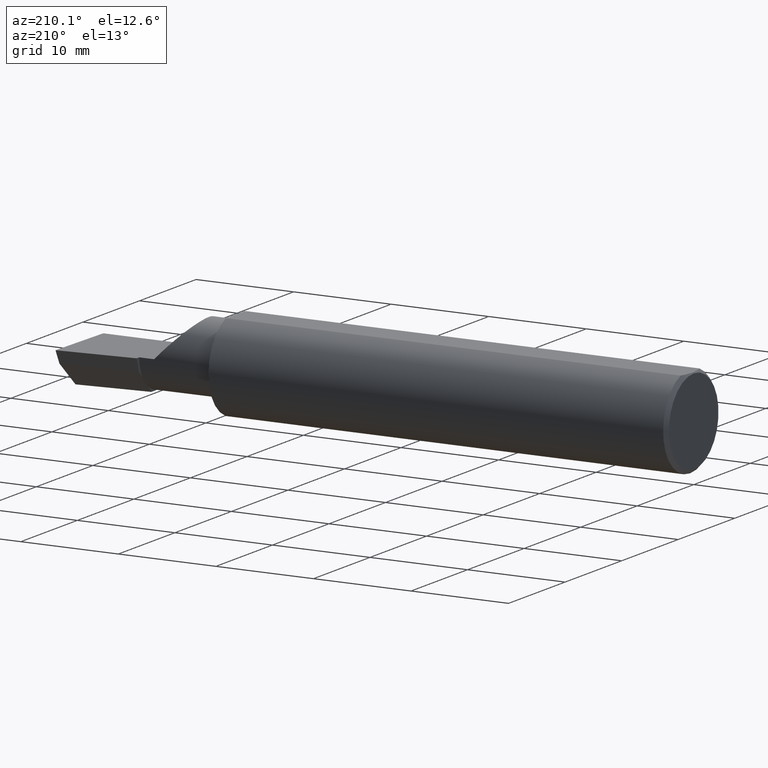
[diagram: clean part render]
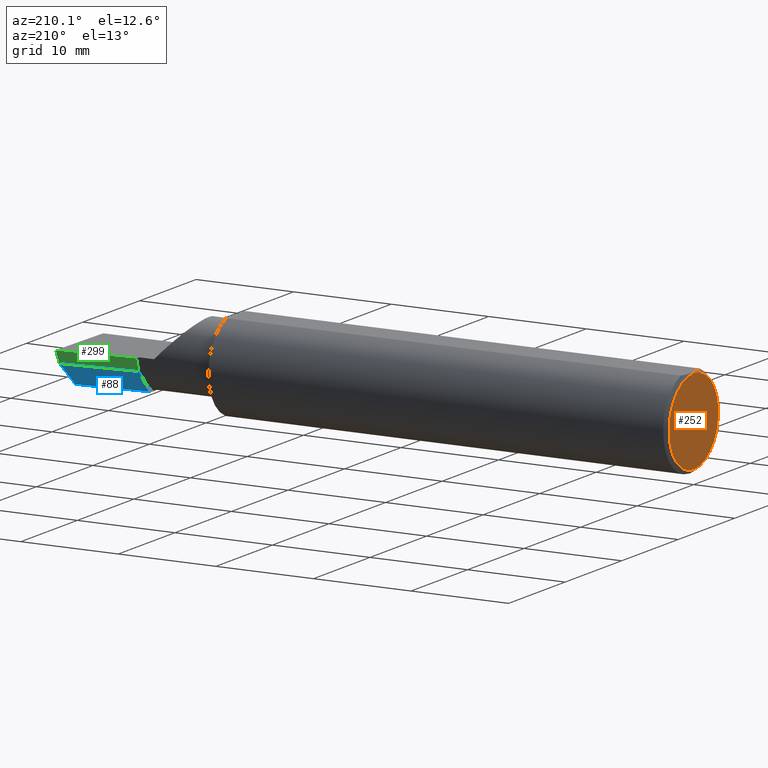
[diagram: same view with three faces highlighted in distinct colors, each labeled with its STEP entity id]
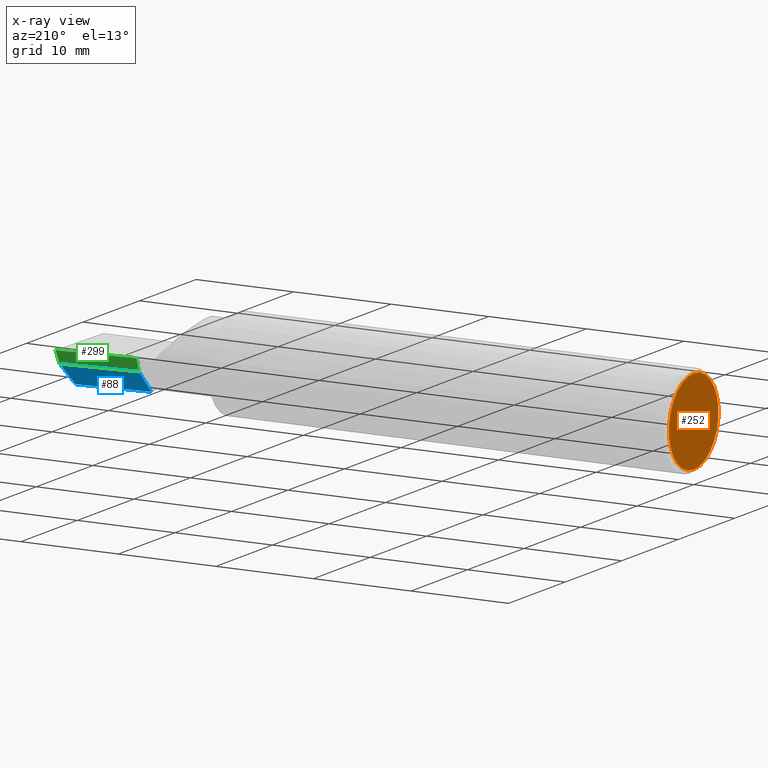
[diagram: x-ray of the same camera — body ghosted, the three highlighted faces saturated]
A machine part, auxiliary view with three faces highlighted in distinct colors.
The next image is the same camera in x-ray (body ghosted, the three faces saturated) — at least one of them is partly hidden behind the body in this view.
Their STEP definitions:

[orange] entity #252 — the highlighted planar face has unit normal (1, 0, 0).
#2 = ORIENTED_EDGE ( 'NONE', *, *, #427, .T. ) ;
#27 = AXIS2_PLACEMENT_3D ( 'NONE', #540, #150, #441 ) ;
#29 = CARTESIAN_POINT ( 'NONE',  ( 0.0000000000000000000, 0.0000000000000000000, 0.0000000000000000000 ) ) ;
#58 = FACE_OUTER_BOUND ( 'NONE', #65, .T. ) ;
#65 = EDGE_LOOP ( 'NONE', ( #2, #534 ) ) ;
#66 = CARTESIAN_POINT ( 'NONE',  ( 0.0000000000000000000, 2.202527268266512578E-17, 0.1723499999999996424 ) ) ;
#85 = CARTESIAN_POINT ( 'NONE',  ( 0.0000000000000000000, 0.0000000000000000000, 0.0000000000000000000 ) ) ;
#99 = CARTESIAN_POINT ( 'NONE',  ( 0.0000000000000000000, 0.0000000000000000000, -0.1723499999999996424 ) ) ;
#150 = DIRECTION ( 'NONE',  ( -1.000000000000000000, -0.0000000000000000000, -0.0000000000000000000 ) ) ;
#214 = DIRECTION ( 'NONE',  ( 0.0000000000000000000, 0.0000000000000000000, 1.000000000000000000 ) ) ;
#252 = ADVANCED_FACE ( 'NONE', ( #58 ), #388, .F. ) ;
#301 = VERTEX_POINT ( 'NONE', #66 ) ;
#360 = AXIS2_PLACEMENT_3D ( 'NONE', #29, #557, #214 ) ;
#373 = EDGE_CURVE ( 'NONE', #301, #456, #467, .T. ) ;
#388 = PLANE ( 'NONE',  #496 ) ;
#427 = EDGE_CURVE ( 'NONE', #456, #301, #528, .T. ) ;
#441 = DIRECTION ( 'NONE',  ( 0.0000000000000000000, 0.0000000000000000000, 1.000000000000000000 ) ) ;
#450 = DIRECTION ( 'NONE',  ( 1.000000000000000000, 0.0000000000000000000, 0.0000000000000000000 ) ) ;
#456 = VERTEX_POINT ( 'NONE', #99 ) ;
#467 = CIRCLE ( 'NONE', #360, 0.1723499999999996424 ) ;
#496 = AXIS2_PLACEMENT_3D ( 'NONE', #85, #450, #506 ) ;
#506 = DIRECTION ( 'NONE',  ( 0.0000000000000000000, 0.0000000000000000000, -1.000000000000000000 ) ) ;
#528 = CIRCLE ( 'NONE', #27, 0.1723499999999996424 ) ;
#534 = ORIENTED_EDGE ( 'NONE', *, *, #373, .T. ) ;
#540 = CARTESIAN_POINT ( 'NONE',  ( 0.0000000000000000000, 0.0000000000000000000, 0.0000000000000000000 ) ) ;
#557 = DIRECTION ( 'NONE',  ( -1.000000000000000000, -0.0000000000000000000, -0.0000000000000000000 ) ) ;

[blue] entity #88 — the highlighted planar face has unit normal (-0.0689, 0.716, -0.6947).
#9 = CARTESIAN_POINT ( 'NONE',  ( 2.189999999999999947, 0.02208021110064905049, -0.1153121786430048451 ) ) ;
#22 = DIRECTION ( 'NONE',  ( 4.755568962650851256E-18, -0.6963153109074922131, -0.7177360153954950306 ) ) ;
#30 = DIRECTION ( 'NONE',  ( 4.755568962650851256E-18, -0.6963153109074922131, -0.7177360153954950306 ) ) ;
#71 = CARTESIAN_POINT ( 'NONE',  ( 2.189999999999999947, 0.06670933817657891118, -0.06931012851386068874 ) ) ;
#88 = ADVANCED_FACE ( 'NONE', ( #372 ), #106, .T. ) ;
#106 = PLANE ( 'NONE',  #146 ) ;
#109 = LINE ( 'NONE', #121, #420 ) ;
#118 = VECTOR ( 'NONE', #426, 39.37007874015748854 ) ;
#119 = CARTESIAN_POINT ( 'NONE',  ( 2.189999999999999947, 0.06026672169836851112, -0.07595093880103585826 ) ) ;
#121 = CARTESIAN_POINT ( 'NONE',  ( 2.511419111345317923, 0.1163922996227946260, -0.04999999999999999584 ) ) ;
#123 = DIRECTION ( 'NONE',  ( -0.9953961983671800740, -0.09584575252021031166, 0.0000000000000000000 ) ) ;
#130 = ORIENTED_EDGE ( 'NONE', *, *, #410, .T. ) ;
#146 = AXIS2_PLACEMENT_3D ( 'NONE', #530, #216, #399 ) ;
#149 = LINE ( 'NONE', #71, #203 ) ;
#175 = LINE ( 'NONE', #340, #118 ) ;
#187 = EDGE_CURVE ( 'NONE', #263, #398, #318, .T. ) ;
#194 = CARTESIAN_POINT ( 'NONE',  ( 2.493766568580444432, 0.1168246249203732934, -0.04780233936830599606 ) ) ;
#203 = VECTOR ( 'NONE', #569, 39.37007874015748854 ) ;
#205 = CARTESIAN_POINT ( 'NONE',  ( 2.189999999999999947, 0.06670933817657891118, -0.06931012851386068874 ) ) ;
#216 = DIRECTION ( 'NONE',  ( -0.06894566448119622548, 0.7160281025913036723, -0.6946583704589932573 ) ) ;
#225 = CARTESIAN_POINT ( 'NONE',  ( 2.480058035321255794, 0.02601009779168080016, -0.1400500000000000633 ) ) ;
#241 = CARTESIAN_POINT ( 'NONE',  ( 2.189999999999999947, 0.08544315931885974880, -0.05000000000000000278 ) ) ;
#246 = CARTESIAN_POINT ( 'NONE',  ( 2.189999999999999947, 0.06670933817657891118, -0.06931012851386068874 ) ) ;
#262 = LINE ( 'NONE', #205, #437 ) ;
#263 = VERTEX_POINT ( 'NONE', #9 ) ;
#285 = DIRECTION ( 'NONE',  ( 0.1053106618240635256, 0.6976485211320198054, 0.7086580314005361814 ) ) ;
#309 = VERTEX_POINT ( 'NONE', #119 ) ;
#318 = LINE ( 'NONE', #246, #387 ) ;
#327 = ORIENTED_EDGE ( 'NONE', *, *, #369, .F. ) ;
#339 = CARTESIAN_POINT ( 'NONE',  ( 2.189999999999999947, -0.001919314351446888608, -0.1400500000000000911 ) ) ;
#340 = CARTESIAN_POINT ( 'NONE',  ( 2.491859106488688358, 0.02714641170210416524, -0.1400500000000000633 ) ) ;
#348 = VECTOR ( 'NONE', #285, 39.37007874015748854 ) ;
#363 = ORIENTED_EDGE ( 'NONE', *, *, #187, .F. ) ;
#369 = EDGE_CURVE ( 'NONE', #485, #309, #149, .T. ) ;
#372 = FACE_OUTER_BOUND ( 'NONE', #556, .T. ) ;
#387 = VECTOR ( 'NONE', #22, 39.37007874015748854 ) ;
#398 = VERTEX_POINT ( 'NONE', #339 ) ;
#399 = DIRECTION ( 'NONE',  ( 0.0000000000000000000, 0.6963153109074923242, 0.7177360153954949196 ) ) ;
#410 = EDGE_CURVE ( 'NONE', #536, #398, #175, .T. ) ;
#420 = VECTOR ( 'NONE', #123, 39.37007874015748854 ) ;
#426 = DIRECTION ( 'NONE',  ( -0.9953961983671800740, -0.09584575252021032554, -1.093478026937437971E-17 ) ) ;
#433 = LINE ( 'NONE', #194, #348 ) ;
#437 = VECTOR ( 'NONE', #30, 39.37007874015748854 ) ;
#454 = ORIENTED_EDGE ( 'NONE', *, *, #459, .F. ) ;
#459 = EDGE_CURVE ( 'NONE', #536, #509, #433, .T. ) ;
#460 = EDGE_CURVE ( 'NONE', #309, #263, #262, .T. ) ;
#485 = VERTEX_POINT ( 'NONE', #241 ) ;
#509 = VERTEX_POINT ( 'NONE', #515 ) ;
#515 = CARTESIAN_POINT ( 'NONE',  ( 2.493439983562941720, 0.1146611065212079089, -0.04999999999999999584 ) ) ;
#518 = ORIENTED_EDGE ( 'NONE', *, *, #566, .F. ) ;
#530 = CARTESIAN_POINT ( 'NONE',  ( 2.511419111345317923, 0.1163922996227946260, -0.04999999999999999584 ) ) ;
#536 = VERTEX_POINT ( 'NONE', #225 ) ;
#556 = EDGE_LOOP ( 'NONE', ( #454, #130, #363, #560, #327, #518 ) ) ;
#560 = ORIENTED_EDGE ( 'NONE', *, *, #460, .F. ) ;
#566 = EDGE_CURVE ( 'NONE', #509, #485, #109, .T. ) ;
#569 = DIRECTION ( 'NONE',  ( 4.755568962650851256E-18, -0.6963153109074922131, -0.7177360153954950306 ) ) ;

[green] entity #299 — the highlighted planar face has unit normal (-0.0917, 0.9519, -0.2924).
#23 = CARTESIAN_POINT ( 'NONE',  ( 2.189999999999999947, 0.09745742888373050417, -0.01088401009027229610 ) ) ;
#57 = DIRECTION ( 'NONE',  ( 0.0000000000000000000, 0.2936076258024060137, 0.9559260233253795702 ) ) ;
#78 = DIRECTION ( 'NONE',  ( 2.005228508682077051E-18, -0.2936076258024061247, -0.9559260233253795702 ) ) ;
#92 = FACE_OUTER_BOUND ( 'NONE', #135, .T. ) ;
#98 = DIRECTION ( 'NONE',  ( -0.09165774897393341725, 0.9519021185660614393, -0.2923717047227303301 ) ) ;
#109 = LINE ( 'NONE', #121, #420 ) ;
#110 = VERTEX_POINT ( 'NONE', #584 ) ;
#113 = VECTOR ( 'NONE', #491, 39.37007874015748143 ) ;
#121 = CARTESIAN_POINT ( 'NONE',  ( 2.511419111345317923, 0.1163922996227946260, -0.04999999999999999584 ) ) ;
#123 = DIRECTION ( 'NONE',  ( -0.9953961983671800740, -0.09584575252021031166, 0.0000000000000000000 ) ) ;
#135 = EDGE_LOOP ( 'NONE', ( #475, #231, #424, #168 ) ) ;
#142 = DIRECTION ( 'NONE',  ( 0.9953961983671787417, 0.09584575252022456415, -1.028972571603813720E-16 ) ) ;
#168 = ORIENTED_EDGE ( 'NONE', *, *, #391, .T. ) ;
#221 = CARTESIAN_POINT ( 'NONE',  ( 2.509953961983671711, 0.1316084575252021438, -6.829619984160658046E-17 ) ) ;
#230 = PLANE ( 'NONE',  #260 ) ;
#231 = ORIENTED_EDGE ( 'NONE', *, *, #566, .T. ) ;
#241 = CARTESIAN_POINT ( 'NONE',  ( 2.189999999999999947, 0.08544315931885974880, -0.05000000000000000278 ) ) ;
#242 = CARTESIAN_POINT ( 'NONE',  ( 2.500188977433779769, 0.1311105994646662165, 0.001440373173041280524 ) ) ;
#260 = AXIS2_PLACEMENT_3D ( 'NONE', #221, #98, #57 ) ;
#299 = ADVANCED_FACE ( 'NONE', ( #92 ), #230, .T. ) ;
#306 = LINE ( 'NONE', #581, #553 ) ;
#356 = VECTOR ( 'NONE', #78, 39.37007874015748143 ) ;
#391 = EDGE_CURVE ( 'NONE', #411, #110, #306, .T. ) ;
#411 = VERTEX_POINT ( 'NONE', #415 ) ;
#415 = CARTESIAN_POINT ( 'NONE',  ( 2.189999999999999947, 0.1008003950587675057, 3.286754617377316716E-16 ) ) ;
#420 = VECTOR ( 'NONE', #123, 39.37007874015748854 ) ;
#424 = ORIENTED_EDGE ( 'NONE', *, *, #487, .F. ) ;
#435 = LINE ( 'NONE', #23, #356 ) ;
#452 = EDGE_CURVE ( 'NONE', #509, #110, #489, .T. ) ;
#475 = ORIENTED_EDGE ( 'NONE', *, *, #452, .F. ) ;
#485 = VERTEX_POINT ( 'NONE', #241 ) ;
#487 = EDGE_CURVE ( 'NONE', #411, #485, #435, .T. ) ;
#489 = LINE ( 'NONE', #242, #113 ) ;
#491 = DIRECTION ( 'NONE',  ( 0.1240019227988267692, 0.3022330132596589558, 0.9451342385281472636 ) ) ;
#509 = VERTEX_POINT ( 'NONE', #515 ) ;
#515 = CARTESIAN_POINT ( 'NONE',  ( 2.493439983562941720, 0.1146611065212079089, -0.04999999999999999584 ) ) ;
#553 = VECTOR ( 'NONE', #142, 39.37007874015748143 ) ;
#566 = EDGE_CURVE ( 'NONE', #509, #485, #109, .T. ) ;
#581 = CARTESIAN_POINT ( 'NONE',  ( 0.5470260790800310913, -0.05740000000000000657, 2.701812985571357332E-16 ) ) ;
#584 = CARTESIAN_POINT ( 'NONE',  ( 2.499999999999978684, 0.1306500000000238026, 8.386613271330909852E-14 ) ) ;